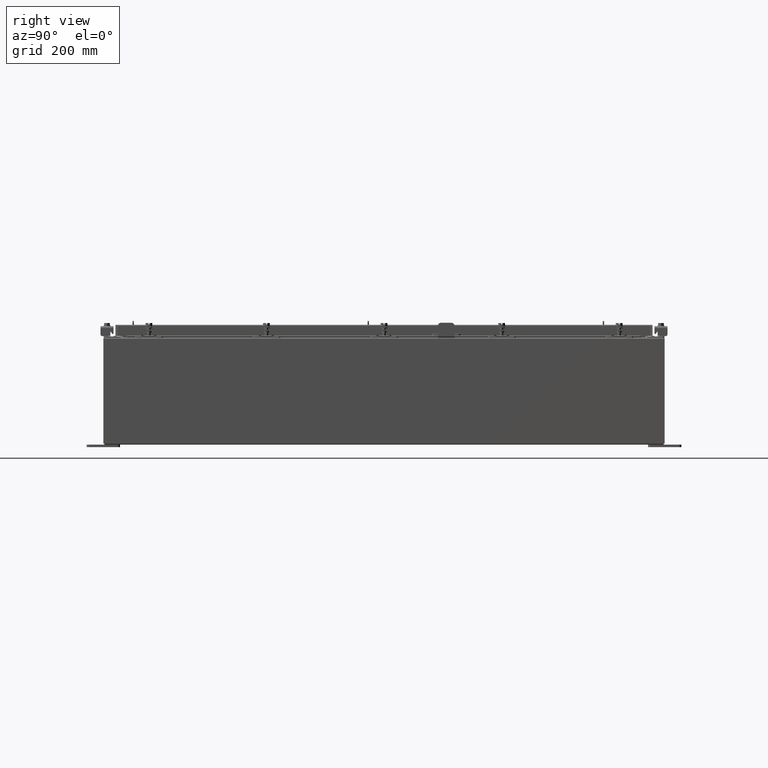
[diagram: clean part render]
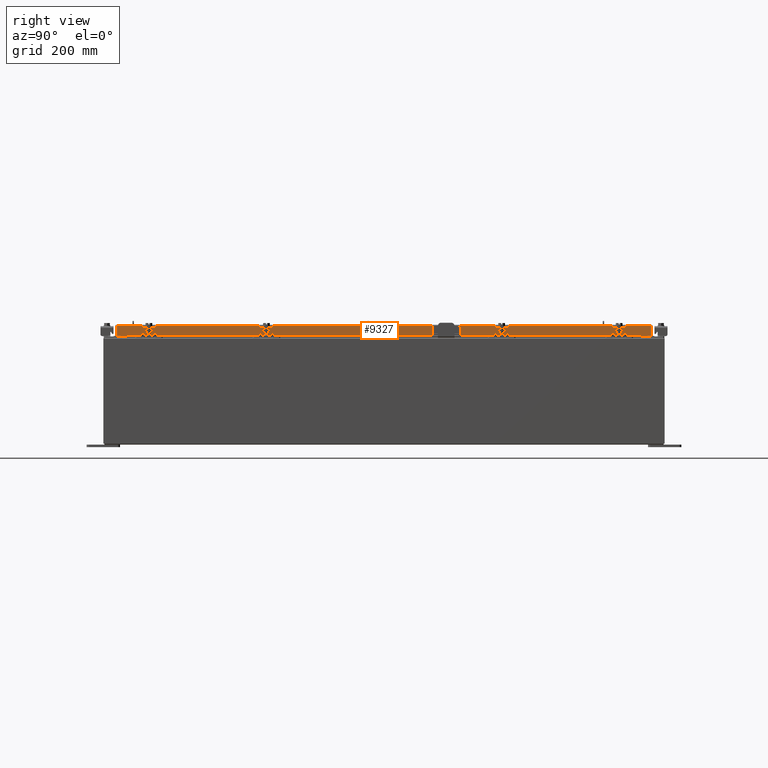
[diagram: same view with one face highlighted and labeled with its STEP entity id]
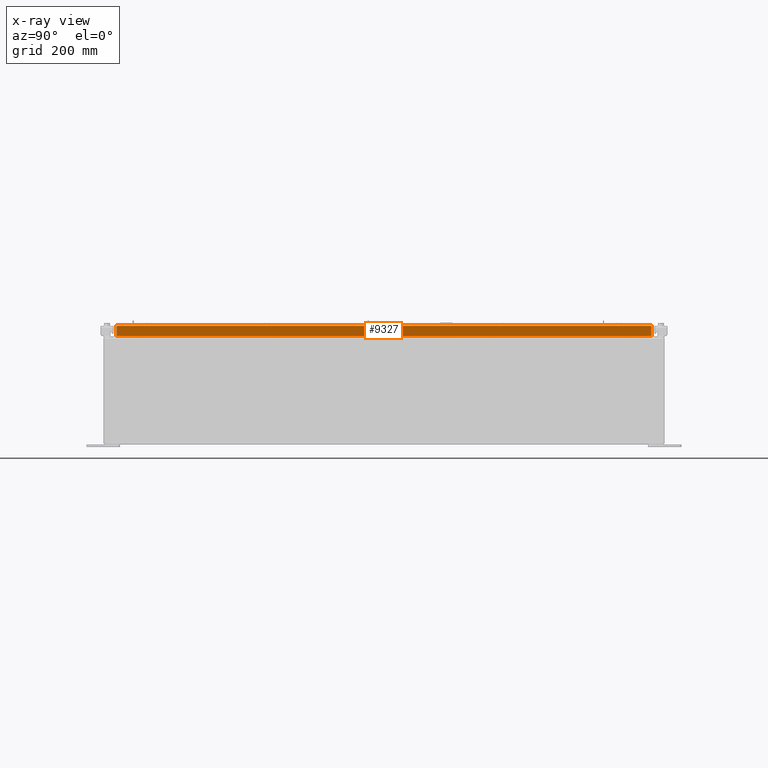
[diagram: x-ray of the same camera — body ghosted, the highlighted face saturated]
A machine part, right view. The second image highlights one B-rep face of the part: STEP entity #9327.
The next image is the same camera in x-ray: the body ghosted, the highlighted face saturated — about 0% of this face is hidden behind the body in this view.
In plain terms, the highlighted planar face has unit normal (1, 0, 0).
Its self-contained STEP definition (entity closure, byte-faithful):
#150 = CARTESIAN_POINT ( 'NONE',  ( 14.07800000000000300, -20.00515786437626500, -0.8499999999999999800 ) ) ;
#528 = EDGE_LOOP ( 'NONE', ( #17958, #13890, #17887, #9428, #10416, #10682 ) ) ;
#1067 = VERTEX_POINT ( 'NONE', #2487 ) ;
#1519 = LINE ( 'NONE', #6204, #15455 ) ;
#2240 = LINE ( 'NONE', #20961, #16807 ) ;
#2487 = CARTESIAN_POINT ( 'NONE',  ( 14.07799999999999900, 20.00515786437626900, -0.08770000000000136000 ) ) ;
#4896 = EDGE_CURVE ( 'NONE', #6592, #6471, #1519, .T. ) ;
#5191 = VECTOR ( 'NONE', #16421, 39.37007874015748100 ) ;
#5608 = VERTEX_POINT ( 'NONE', #18212 ) ;
#5794 = DIRECTION ( 'NONE',  ( 0.0000000000000000000, -1.000000000000000000, 0.0000000000000000000 ) ) ;
#6204 = CARTESIAN_POINT ( 'NONE',  ( 14.07800000000000300, -20.09400000000000100, -0.8499999999999999800 ) ) ;
#6471 = VERTEX_POINT ( 'NONE', #150 ) ;
#6592 = VERTEX_POINT ( 'NONE', #19501 ) ;
#6717 = DIRECTION ( 'NONE',  ( 1.000000000000000000, 0.0000000000000000000, 2.818880942772360100E-015 ) ) ;
#6772 = FACE_OUTER_BOUND ( 'NONE', #528, .T. ) ;
#7094 = LINE ( 'NONE', #8087, #16022 ) ;
#7828 = VECTOR ( 'NONE', #24419, 39.37007874015748100 ) ;
#8087 = CARTESIAN_POINT ( 'NONE',  ( 14.07799999999999900, 20.00515786437626900, 1.792092283843756600E-013 ) ) ;
#9327 = ADVANCED_FACE ( 'NONE', ( #6772 ), #12367, .T. ) ;
#9428 = ORIENTED_EDGE ( 'NONE', *, *, #12001, .F. ) ;
#10000 = DIRECTION ( 'NONE',  ( -2.818880942772360100E-015, -6.982962677686265900E-015, 1.000000000000000000 ) ) ;
#10416 = ORIENTED_EDGE ( 'NONE', *, *, #24498, .T. ) ;
#10682 = ORIENTED_EDGE ( 'NONE', *, *, #21029, .T. ) ;
#11112 = CARTESIAN_POINT ( 'NONE',  ( 14.07799999999999900, -20.00515786437626900, -0.07470000000000015500 ) ) ;
#11145 = VECTOR ( 'NONE', #17880, 39.37007874015748100 ) ;
#11518 = EDGE_CURVE ( 'NONE', #14850, #6592, #21876, .T. ) ;
#11843 = DIRECTION ( 'NONE',  ( 0.0000000000000000000, -1.000000000000000000, 0.0000000000000000000 ) ) ;
#12001 = EDGE_CURVE ( 'NONE', #5608, #14850, #2240, .T. ) ;
#12367 = PLANE ( 'NONE',  #17531 ) ;
#12569 = CARTESIAN_POINT ( 'NONE',  ( 14.07799999999999900, 4.769246039840069500E-018, -0.08770000000000136000 ) ) ;
#13890 = ORIENTED_EDGE ( 'NONE', *, *, #4896, .F. ) ;
#14850 = VERTEX_POINT ( 'NONE', #19279 ) ;
#15282 = LINE ( 'NONE', #12569, #5191 ) ;
#15455 = VECTOR ( 'NONE', #11843, 39.37007874015748100 ) ;
#15955 = CARTESIAN_POINT ( 'NONE',  ( 14.07799999999998900, 19.25515786437627200, -0.8500000000000020900 ) ) ;
#16022 = VECTOR ( 'NONE', #10000, 39.37007874015748100 ) ;
#16421 = DIRECTION ( 'NONE',  ( 1.532946003362416700E-031, -1.000000000000000000, -5.438136744628771400E-017 ) ) ;
#16676 = EDGE_CURVE ( 'NONE', #6471, #18233, #21820, .T. ) ;
#16807 = VECTOR ( 'NONE', #5794, 39.37007874015748100 ) ;
#17531 = AXIS2_PLACEMENT_3D ( 'NONE', #18142, #6717, #20077 ) ;
#17880 = DIRECTION ( 'NONE',  ( 0.0000000000000000000, -1.000000000000000000, 0.0000000000000000000 ) ) ;
#17887 = ORIENTED_EDGE ( 'NONE', *, *, #11518, .F. ) ;
#17958 = ORIENTED_EDGE ( 'NONE', *, *, #16676, .F. ) ;
#18142 = CARTESIAN_POINT ( 'NONE',  ( 14.07799999999999900, 0.0000000000000000000, 4.043135030623109600E-014 ) ) ;
#18212 = CARTESIAN_POINT ( 'NONE',  ( 14.07800000000000300, 20.00515786437627200, -0.8499999999999999800 ) ) ;
#18233 = VERTEX_POINT ( 'NONE', #23896 ) ;
#19279 = CARTESIAN_POINT ( 'NONE',  ( 14.07799999999998900, 19.25515786437626900, -0.8500000000000020900 ) ) ;
#19501 = CARTESIAN_POINT ( 'NONE',  ( 14.07799999999998900, -19.25515786437626500, -0.8500000000000020900 ) ) ;
#20077 = DIRECTION ( 'NONE',  ( 2.818880942772360100E-015, 0.0000000000000000000, -1.000000000000000000 ) ) ;
#20961 = CARTESIAN_POINT ( 'NONE',  ( 14.07800000000000300, -20.09400000000000100, -0.8499999999999999800 ) ) ;
#21029 = EDGE_CURVE ( 'NONE', #1067, #18233, #15282, .T. ) ;
#21820 = LINE ( 'NONE', #11112, #7828 ) ;
#21876 = LINE ( 'NONE', #15955, #11145 ) ;
#23896 = CARTESIAN_POINT ( 'NONE',  ( 14.07799999999999900, -20.00515786437626900, -0.08770000000000245700 ) ) ;
#24419 = DIRECTION ( 'NONE',  ( -2.818880942772360100E-015, -6.982962677686265900E-015, 1.000000000000000000 ) ) ;
#24498 = EDGE_CURVE ( 'NONE', #5608, #1067, #7094, .T. ) ;